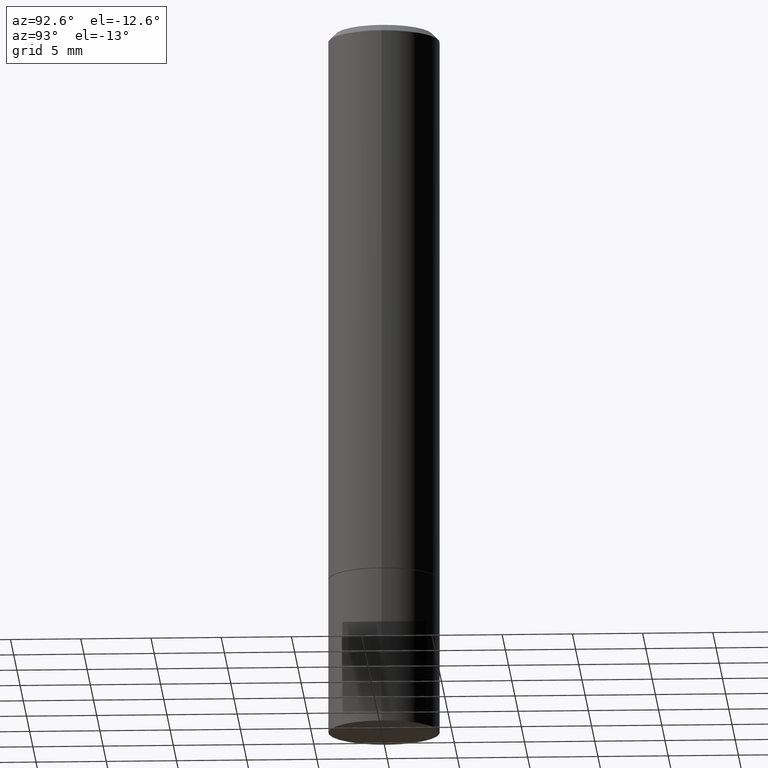
[diagram: clean part render]
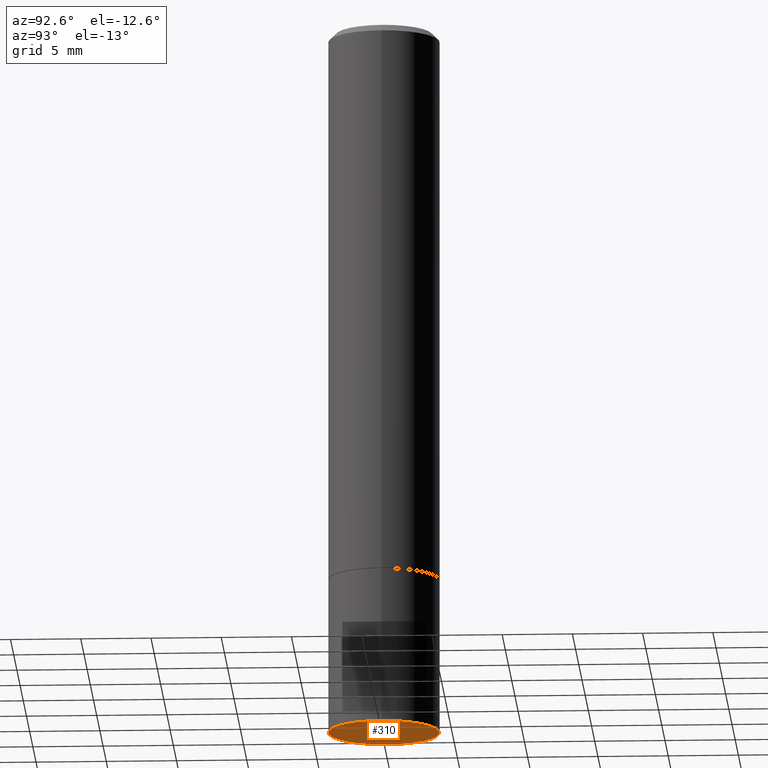
[diagram: same view with one face highlighted and labeled with its STEP entity id]
A machine part, auxiliary view. The second image highlights one B-rep face of the part: STEP entity #310.
In plain terms, the highlighted planar face has unit normal (0, -0, -1).
Its self-contained STEP definition (entity closure, byte-faithful):
#2 = PLANE ( 'NONE',  #355 ) ;
#11 = EDGE_CURVE ( 'NONE', #170, #69, #219, .T. ) ;
#22 = DIRECTION ( 'NONE',  ( 1.000000000000000000, -6.982962677686269077E-15, 0.000000000000000000 ) ) ;
#28 = FACE_OUTER_BOUND ( 'NONE', #163, .T. ) ;
#32 = AXIS2_PLACEMENT_3D ( 'NONE', #277, #225, #22 ) ;
#55 = DIRECTION ( 'NONE',  ( 2.438088387897960049E-29, -3.491481338843145188E-15, -1.000000000000000000 ) ) ;
#69 = VERTEX_POINT ( 'NONE', #172 ) ;
#87 = AXIS2_PLACEMENT_3D ( 'NONE', #193, #199, #333 ) ;
#98 = EDGE_CURVE ( 'NONE', #69, #170, #263, .T. ) ;
#114 = ORIENTED_EDGE ( 'NONE', *, *, #98, .F. ) ;
#119 = ORIENTED_EDGE ( 'NONE', *, *, #11, .F. ) ;
#163 = EDGE_LOOP ( 'NONE', ( #119, #114 ) ) ;
#170 = VERTEX_POINT ( 'NONE', #264 ) ;
#172 = CARTESIAN_POINT ( 'NONE',  ( -0.1562500000000000000, -5.108978110189196442E-15, -2.000000000000000000 ) ) ;
#178 = CARTESIAN_POINT ( 'NONE',  ( 1.091087918388527886E-15, 0.1562499999999930334, -2.000000000000000444 ) ) ;
#193 = CARTESIAN_POINT ( 'NONE',  ( 4.890937612370273194E-29, -6.982962677686291165E-15, -2.000000000000000000 ) ) ;
#199 = DIRECTION ( 'NONE',  ( -2.445468806185136597E-29, 3.491481338843145583E-15, 1.000000000000000000 ) ) ;
#219 = CIRCLE ( 'NONE', #87, 0.1562500000000000000 ) ;
#225 = DIRECTION ( 'NONE',  ( -2.445468806185136597E-29, 3.491481338843145583E-15, 1.000000000000000000 ) ) ;
#263 = CIRCLE ( 'NONE', #32, 0.1562500000000000000 ) ;
#264 = CARTESIAN_POINT ( 'NONE',  ( 0.1562500000000000000, -8.074050596074770339E-15, -2.000000000000000000 ) ) ;
#277 = CARTESIAN_POINT ( 'NONE',  ( 4.890937612370273194E-29, -6.982962677686291165E-15, -2.000000000000000000 ) ) ;
#283 = DIRECTION ( 'NONE',  ( -1.000000000000000000, 6.982962677686265922E-15, -4.876176775795935793E-29 ) ) ;
#310 = ADVANCED_FACE ( 'NONE', ( #28 ), #2, .T. ) ;
#333 = DIRECTION ( 'NONE',  ( 1.000000000000000000, -6.982962677686269077E-15, 0.000000000000000000 ) ) ;
#355 = AXIS2_PLACEMENT_3D ( 'NONE', #178, #55, #283 ) ;